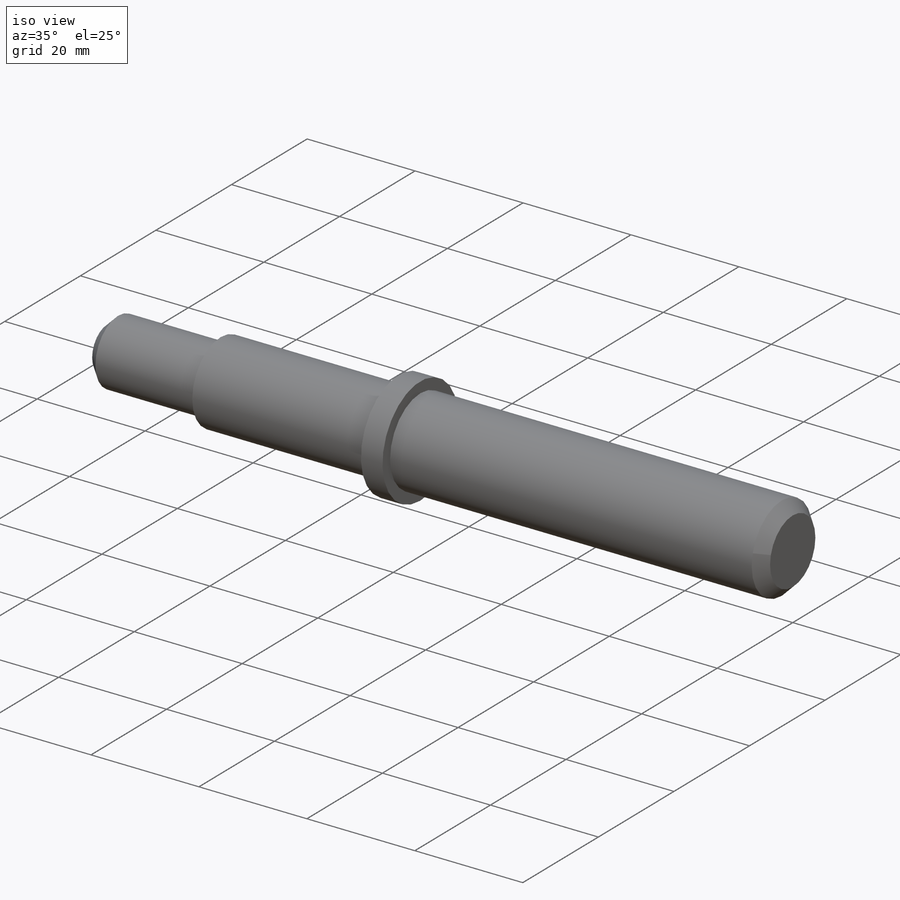
[diagram: iso view]
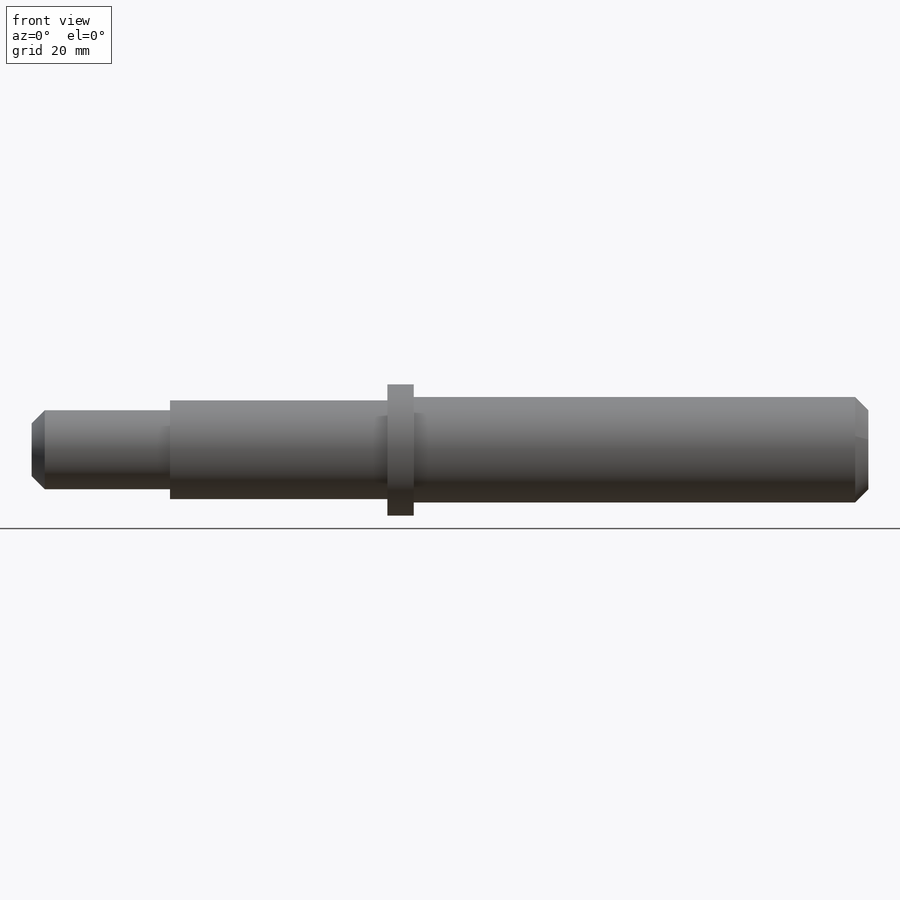
[diagram: front view]
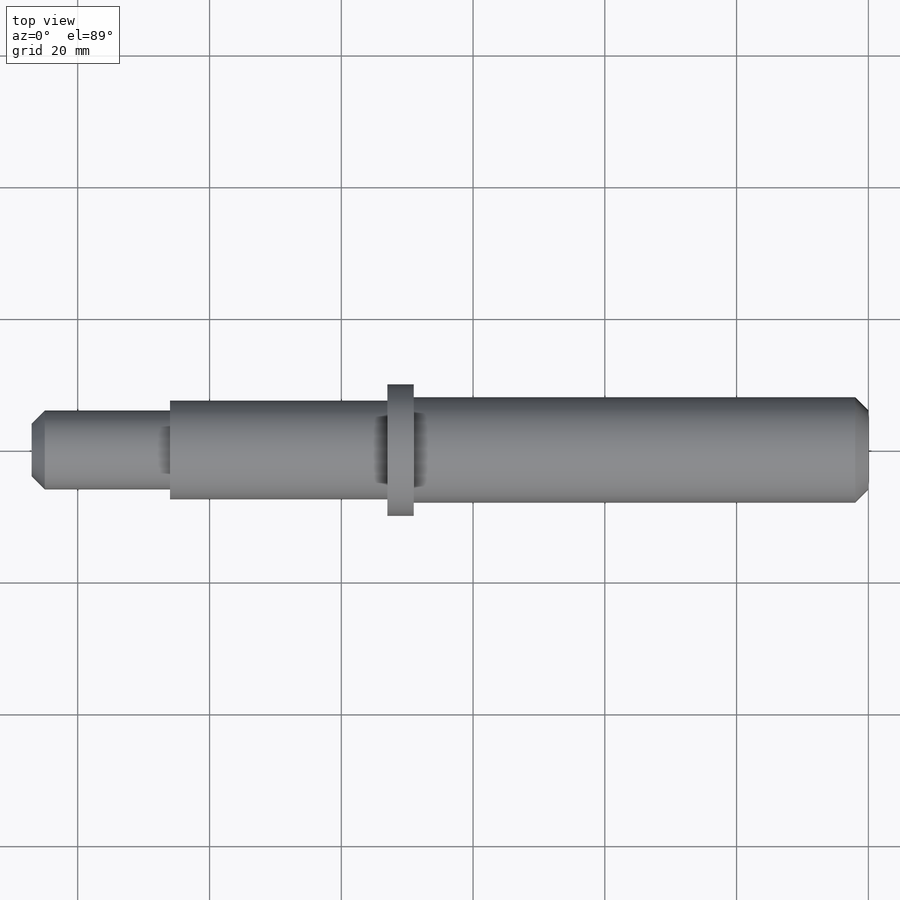
[diagram: top view]
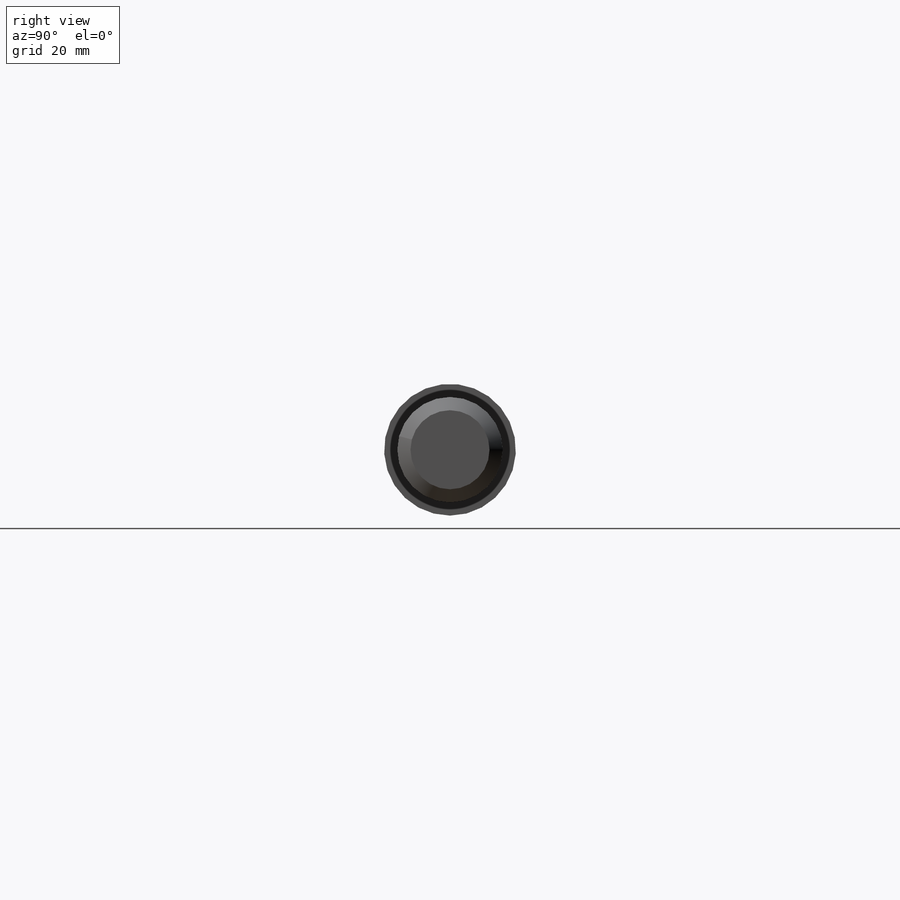
[diagram: right view]
SOLIDWORKS PART (.sldprt)
format: sldprt  version: not decoded by parser v0  size: 197,120 bytes
history: native  units: mm
features: plane x3, sketch x3, thread x2, chamfer x2, material x1, revolve x1, cut_extrude x1 (+9 scaffold rows collapsed)
feature tree (22):
  scaffold x9  (default folders/planes/origin — collapsed)
  material  "Material <nicht festgelegt>"
  plane  "Ebene vorne"
  plane  "Ebene oben"
  plane  "Ebene rechts"
  sketch  "Skizze1"  dims[D1=69.0mm D2=8.0mm D3=10.0mm D4=4.0mm D5=54.0mm D6=7.5mm]
  revolve  "Rotation1"  [1 undecoded]
  thread  "Gewindedarstellung2"  Diameter=18mm  [1 undecoded]
  sketch  "Skizze2"  dims[D1=12.0mm]
  cut_extrude  "Schnitt-Linear austragen2"  [1 undecoded]
  thread  "Gewindedarstellung1"  Diameter=20mm  [1 undecoded]
  chamfer  "Fase2"  Distance=2mm Angle=45deg
  sketch  "Skizze3"
  chamfer  "Fase3"  Distance=2mm Angle=45deg
decode coverage: 6 of 9 modeling features carry decoded parameters
note: 4 parameter values undecoded
note: suppression state not decoded; provenance and decode notes live in map.json
